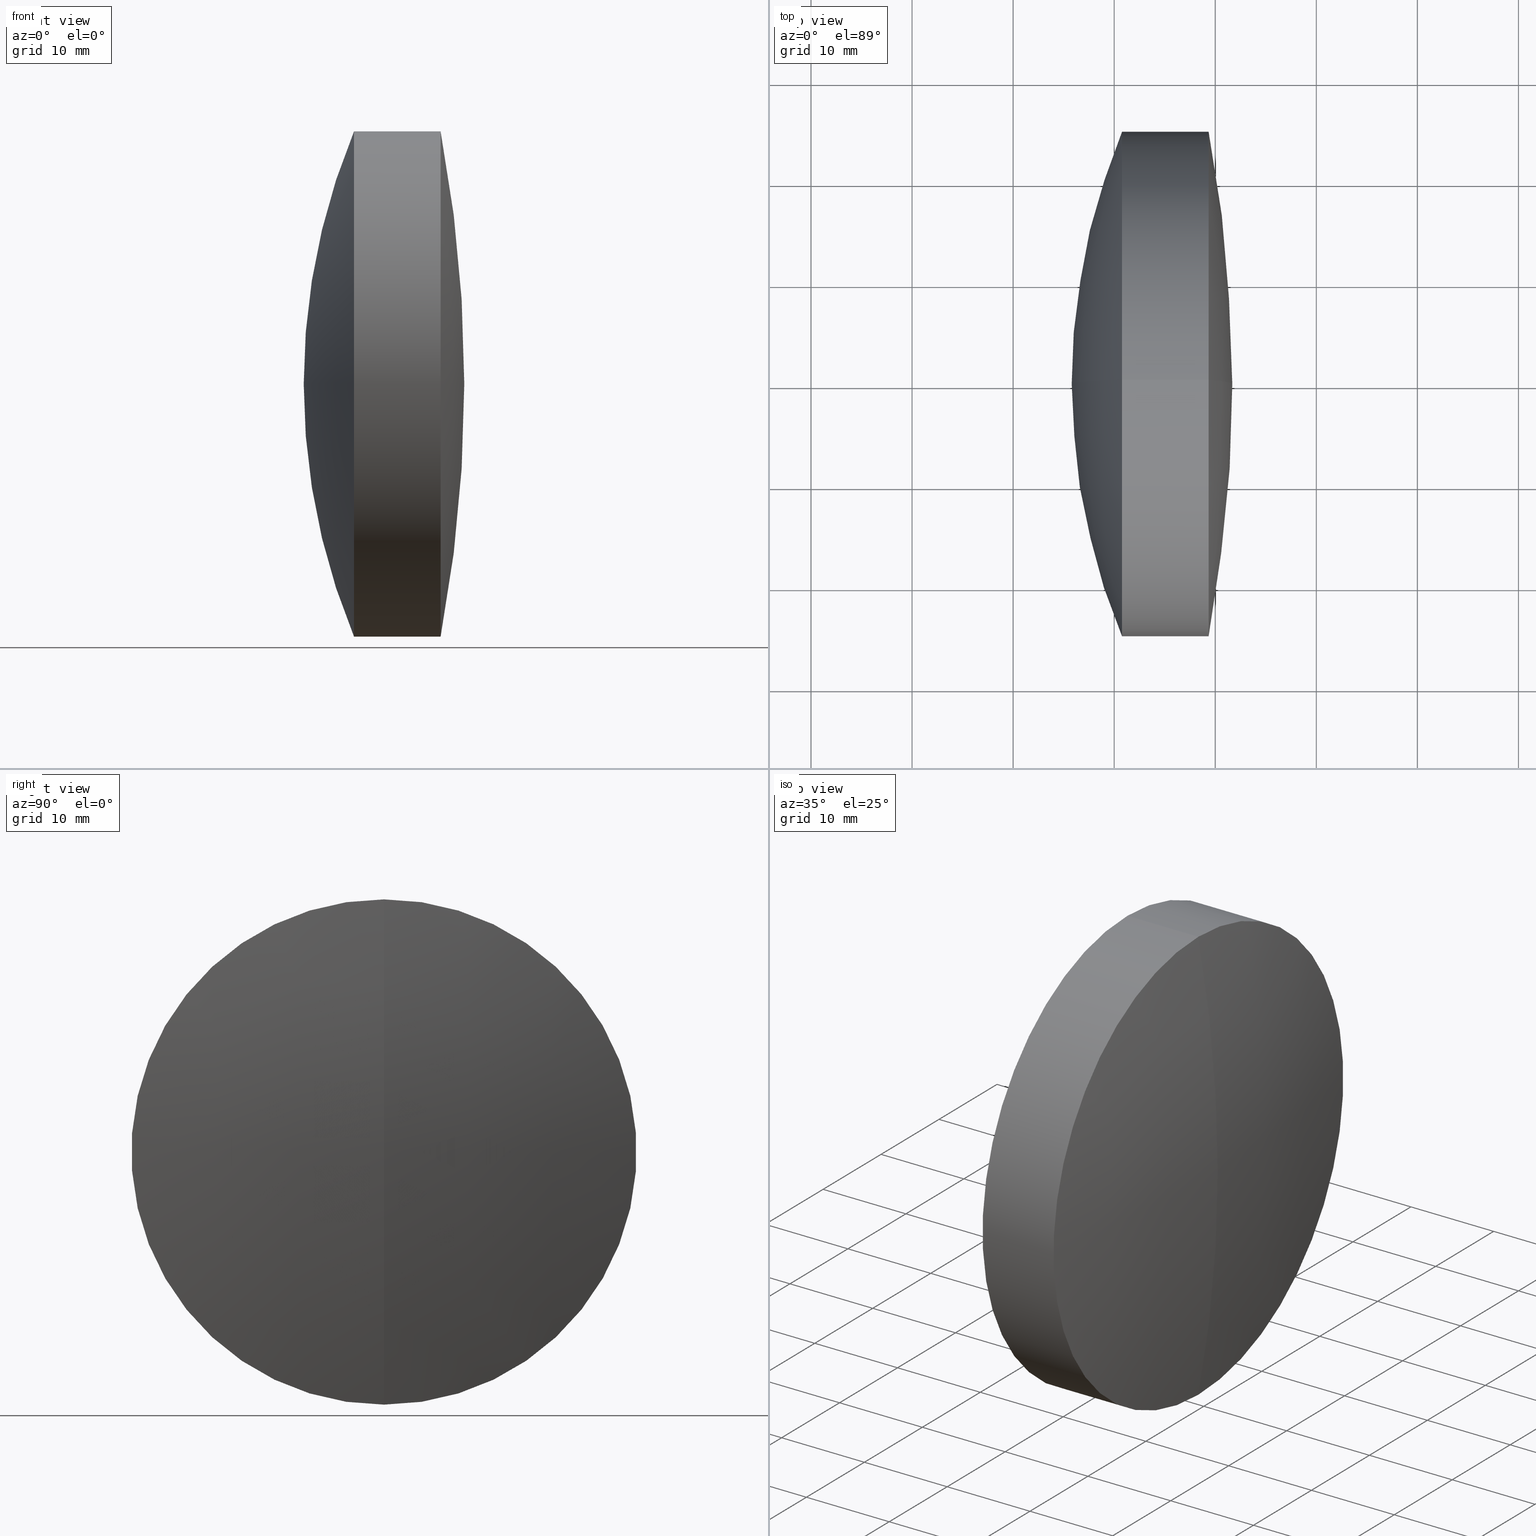
[diagram: canonical four-view strip — front | top / right | iso, engineering-drawing reading convention]
A machine part, canonical four-view strip (front | top / right | iso — engineering-drawing reading convention). The complete STEP part file that produces these views, byte-faithful:
ISO-10303-21;
HEADER;
FILE_DESCRIPTION (( 'STEP AP214' ),
    '1' );
FILE_NAME ('145079.STEP',
    '2019-05-16T02:28:18',
    ( 'user' ),
    ( '΢���й�' ),
    'SwSTEP 2.0',
    'SolidWorks 2016',
    '' );
FILE_SCHEMA (( 'AUTOMOTIVE_DESIGN' ));
ENDSEC;

DATA;
#1 = CARTESIAN_POINT ( 'NONE',  ( 181.4884551574296000, 0.0000000000000000000, -3.469446951953614200E-015 ) ) ;
#2 = CARTESIAN_POINT ( 'NONE',  ( 222.6946538294740800, 3.061616997868383000E-015, -25.00000000000000000 ) ) ;
#3 = AXIS2_PLACEMENT_3D ( 'NONE', #216, #189, #300 ) ;
#4 = PRODUCT_DEFINITION_CONTEXT ( 'detailed design', #69, 'design' ) ;
#5 = CIRCLE ( 'NONE', #287, 48.19700000000000300 ) ;
#6 =( GEOMETRIC_REPRESENTATION_CONTEXT ( 3 ) GLOBAL_UNCERTAINTY_ASSIGNED_CONTEXT ( ( #36 ) ) GLOBAL_UNIT_ASSIGNED_CONTEXT ( ( #64, #304, #170 ) ) REPRESENTATION_CONTEXT ( 'NONE', 'WORKASPACE' ) );
#7 = VECTOR ( 'NONE', #322, 1000.000000000000000 ) ;
#8 = ADVANCED_FACE ( 'NONE', ( #153 ), #224, .F. ) ;
#9 = DIRECTION ( 'NONE',  ( -0.0000000000000000000, 1.000000000000000000, 1.224646799147353200E-016 ) ) ;
#10 = SPHERICAL_SURFACE ( 'NONE', #3, 134.5920000000000100 ) ;
#11 = SURFACE_STYLE_USAGE ( .BOTH. , #185 ) ;
#12 = AXIS2_PLACEMENT_3D ( 'NONE', #345, #269, #17 ) ;
#13 = VERTEX_POINT ( 'NONE', #235 ) ;
#14 = CIRCLE ( 'NONE', #323, 24.99999999999999300 ) ;
#15 = VERTEX_POINT ( 'NONE', #234 ) ;
#16 = FACE_OUTER_BOUND ( 'NONE', #208, .T. ) ;
#17 = DIRECTION ( 'NONE',  ( 0.0000000000000000000, 0.0000000000000000000, 1.000000000000000000 ) ) ;
#18 = EDGE_CURVE ( 'NONE', #335, #130, #37, .T. ) ;
#19 = CARTESIAN_POINT ( 'NONE',  ( 181.4884551574296000, 0.0000000000000000000, -3.469446951953614200E-015 ) ) ;
#20 = ORIENTED_EDGE ( 'NONE', *, *, #142, .T. ) ;
#21 = AXIS2_PLACEMENT_3D ( 'NONE', #46, #113, #282 ) ;
#22 = DIRECTION ( 'NONE',  ( 0.0000000000000000000, 0.0000000000000000000, 1.000000000000000000 ) ) ;
#23 = EDGE_CURVE ( 'NONE', #200, #13, #199, .T. ) ;
#24 = DIRECTION ( 'NONE',  ( -1.000000000000000000, -0.0000000000000000000, -0.0000000000000000000 ) ) ;
#25 = SPHERICAL_SURFACE ( 'NONE', #149, 48.19700000000000300 ) ;
#26 = DIRECTION ( 'NONE',  ( -1.000000000000000000, -0.0000000000000000000, -0.0000000000000000000 ) ) ;
#27 = VERTEX_POINT ( 'NONE', #341 ) ;
#28 = AXIS2_PLACEMENT_3D ( 'NONE', #1, #213, #173 ) ;
#29 = CIRCLE ( 'NONE', #207, 134.5920000000000100 ) ;
#30 = CARTESIAN_POINT ( 'NONE',  ( 97.09345515742958800, 0.0000000000000000000, 0.0000000000000000000 ) ) ;
#31 = VERTEX_POINT ( 'NONE', #194 ) ;
#32 = ORIENTED_EDGE ( 'NONE', *, *, #127, .F. ) ;
#33 = ADVANCED_FACE ( 'NONE', ( #16 ), #80, .F. ) ;
#34 = ORIENTED_EDGE ( 'NONE', *, *, #177, .T. ) ;
#35 = LINE ( 'NONE', #239, #110 ) ;
#36 = UNCERTAINTY_MEASURE_WITH_UNIT (LENGTH_MEASURE( 1.000000000000000100E-005 ), #64, 'distance_accuracy_value', 'NONE');
#37 = CIRCLE ( 'NONE', #131, 25.00000000000001100 ) ;
#38 = ORIENTED_EDGE ( 'NONE', *, *, #83, .F. ) ;
#39 = CIRCLE ( 'NONE', #47, 48.19700000000000300 ) ;
#40 = DIRECTION ( 'NONE',  ( 0.0000000000000000000, 0.0000000000000000000, -1.000000000000000000 ) ) ;
#41 = COLOUR_RGB ( '',1.000000000000000000, 1.000000000000000000, 1.000000000000000000 ) ;
#42 = ORIENTED_EDGE ( 'NONE', *, *, #58, .T. ) ;
#43 = CARTESIAN_POINT ( 'NONE',  ( 181.4884551574296000, 0.0000000000000000000, -3.469446951953614200E-015 ) ) ;
#44 = AXIS2_PLACEMENT_3D ( 'NONE', #178, #86, #271 ) ;
#45 = SPHERICAL_SURFACE ( 'NONE', #28, 48.19700000000000300 ) ;
#46 = CARTESIAN_POINT ( 'NONE',  ( 281.0554551574296100, 0.0000000000000000000, -3.469446951953614200E-015 ) ) ;
#47 = AXIS2_PLACEMENT_3D ( 'NONE', #19, #340, #162 ) ;
#48 = PRODUCT_DEFINITION ( 'δ֪', '', #219, #4 ) ;
#49 = AXIS2_PLACEMENT_3D ( 'NONE', #151, #78, #22 ) ;
#50 = DIRECTION ( 'NONE',  ( 0.0000000000000000000, 1.000000000000000000, 0.0000000000000000000 ) ) ;
#51 = EDGE_CURVE ( 'NONE', #31, #335, #29, .T. ) ;
#52 = CIRCLE ( 'NONE', #333, 24.99999999999999300 ) ;
#53 = DIRECTION ( 'NONE',  ( 0.0000000000000000000, 0.0000000000000000000, 1.000000000000000000 ) ) ;
#54 = CARTESIAN_POINT ( 'NONE',  ( -0.5519199926577972300, 0.0000000000000000000, 0.0000000000000000000 ) ) ;
#55 = ADVANCED_FACE ( 'NONE', ( #176 ), #339, .T. ) ;
#56 = CIRCLE ( 'NONE', #230, 134.5920000000000100 ) ;
#57 =( NAMED_UNIT ( * ) SI_UNIT ( $, .STERADIAN. ) SOLID_ANGLE_UNIT ( ) );
#58 = EDGE_CURVE ( 'NONE', #290, #27, #330, .T. ) ;
#59 = LINE ( 'NONE', #240, #7 ) ;
#60 = VERTEX_POINT ( 'NONE', #65 ) ;
#61 = DIRECTION ( 'NONE',  ( 0.0000000000000000000, -1.224646799147353200E-016, 1.000000000000000000 ) ) ;
#62 = ORIENTED_EDGE ( 'NONE', *, *, #154, .F. ) ;
#63 = EDGE_LOOP ( 'NONE', ( #38, #217, #150 ) ) ;
#64 =( LENGTH_UNIT ( ) NAMED_UNIT ( * ) SI_UNIT ( .MILLI., .METRE. ) );
#65 = CARTESIAN_POINT ( 'NONE',  ( 220.7738858347917100, 3.061616997868383800E-015, -25.00000000000001400 ) ) ;
#66 = DIRECTION ( 'NONE',  ( -1.000000000000000000, -0.0000000000000000000, -0.0000000000000000000 ) ) ;
#67 = ORIENTED_EDGE ( 'NONE', *, *, #68, .F. ) ;
#68 = EDGE_CURVE ( 'NONE', #15, #13, #136, .T. ) ;
#69 = APPLICATION_CONTEXT ( 'automotive_design' ) ;
#70 = SURFACE_STYLE_USAGE ( .BOTH. , #184 ) ;
#71 = DIRECTION ( 'NONE',  ( 0.0000000000000000000, 0.0000000000000000000, 1.000000000000000000 ) ) ;
#72 =( GEOMETRIC_REPRESENTATION_CONTEXT ( 3 ) GLOBAL_UNCERTAINTY_ASSIGNED_CONTEXT ( ( #325 ) ) GLOBAL_UNIT_ASSIGNED_CONTEXT ( ( #124, #280, #96 ) ) REPRESENTATION_CONTEXT ( 'NONE', 'WORKASPACE' ) );
#73 = AXIS2_PLACEMENT_3D ( 'NONE', #229, #50, #317 ) ;
#74 = CARTESIAN_POINT ( 'NONE',  ( 222.6946538294740800, 0.0000000000000000000, 0.0000000000000000000 ) ) ;
#75 = AXIS2_PLACEMENT_3D ( 'NONE', #109, #147, #344 ) ;
#76 = ORIENTED_EDGE ( 'NONE', *, *, #108, .F. ) ;
#77 = DIRECTION ( 'NONE',  ( -1.000000000000000000, -0.0000000000000000000, -0.0000000000000000000 ) ) ;
#78 = DIRECTION ( 'NONE',  ( -1.000000000000000000, -0.0000000000000000000, -0.0000000000000000000 ) ) ;
#79 = CYLINDRICAL_SURFACE ( 'NONE', #87, 25.00000000000001100 ) ;
#80 = SPHERICAL_SURFACE ( 'NONE', #188, 48.19700000000000300 ) ;
#81 = AXIS2_PLACEMENT_3D ( 'NONE', #221, #278, #163 ) ;
#82 = UNCERTAINTY_MEASURE_WITH_UNIT (LENGTH_MEASURE( 1.000000000000000100E-005 ), #146, 'distance_accuracy_value', 'NONE');
#83 = EDGE_CURVE ( 'NONE', #60, #90, #301, .T. ) ;
#84 = DIRECTION ( 'NONE',  ( 0.0000000000000000000, 0.0000000000000000000, 1.000000000000000000 ) ) ;
#85 = FACE_OUTER_BOUND ( 'NONE', #117, .T. ) ;
#86 = DIRECTION ( 'NONE',  ( -1.000000000000000000, -0.0000000000000000000, -0.0000000000000000000 ) ) ;
#87 = AXIS2_PLACEMENT_3D ( 'NONE', #54, #77, #156 ) ;
#88 = CARTESIAN_POINT ( 'NONE',  ( 97.09345515742958800, 0.0000000000000000000, 0.0000000000000000000 ) ) ;
#89 = PRESENTATION_STYLE_ASSIGNMENT (( #70 ) ) ;
#90 = VERTEX_POINT ( 'NONE', #310 ) ;
#91 = FACE_OUTER_BOUND ( 'NONE', #95, .T. ) ;
#92 = ADVANCED_FACE ( 'NONE', ( #265 ), #233, .T. ) ;
#93 = ORIENTED_EDGE ( 'NONE', *, *, #293, .T. ) ;
#94 = SURFACE_STYLE_USAGE ( .BOTH. , #291 ) ;
#95 = EDGE_LOOP ( 'NONE', ( #32, #201, #346, #67 ) ) ;
#96 =( NAMED_UNIT ( * ) SI_UNIT ( $, .STERADIAN. ) SOLID_ANGLE_UNIT ( ) );
#97 = CARTESIAN_POINT ( 'NONE',  ( 281.0554551574296100, 0.0000000000000000000, -3.469446951953614200E-015 ) ) ;
#98 = AXIS2_PLACEMENT_3D ( 'NONE', #272, #120, #40 ) ;
#99 = FACE_OUTER_BOUND ( 'NONE', #316, .T. ) ;
#100 = CARTESIAN_POINT ( 'NONE',  ( 181.4884551574296000, 0.0000000000000000000, -3.469446951953614200E-015 ) ) ;
#101 = CARTESIAN_POINT ( 'NONE',  ( 229.3432433009272400, 3.061616997868384200E-015, -25.00000000000001100 ) ) ;
#102 = DIRECTION ( 'NONE',  ( 0.0000000000000000000, 0.0000000000000000000, 1.000000000000000000 ) ) ;
#103 =( LENGTH_UNIT ( ) NAMED_UNIT ( * ) SI_UNIT ( .MILLI., .METRE. ) );
#104 = CIRCLE ( 'NONE', #297, 25.00000000000001100 ) ;
#105 = DIRECTION ( 'NONE',  ( -1.000000000000000000, -0.0000000000000000000, -0.0000000000000000000 ) ) ;
#106 = DIRECTION ( 'NONE',  ( 0.0000000000000000000, 0.0000000000000000000, 1.000000000000000000 ) ) ;
#107 =( GEOMETRIC_REPRESENTATION_CONTEXT ( 3 ) GLOBAL_UNCERTAINTY_ASSIGNED_CONTEXT ( ( #82 ) ) GLOBAL_UNIT_ASSIGNED_CONTEXT ( ( #146, #332, #57 ) ) REPRESENTATION_CONTEXT ( 'NONE', 'WORKASPACE' ) );
#108 = EDGE_CURVE ( 'NONE', #13, #15, #223, .T. ) ;
#109 = CARTESIAN_POINT ( 'NONE',  ( 181.4884551574296000, 0.0000000000000000000, -3.469446951953614200E-015 ) ) ;
#110 = VECTOR ( 'NONE', #169, 1000.000000000000000 ) ;
#111 = ORIENTED_EDGE ( 'NONE', *, *, #311, .F. ) ;
#112 = CARTESIAN_POINT ( 'NONE',  ( -0.5519199926577972300, 3.061616997868384200E-015, -25.00000000000001100 ) ) ;
#113 = DIRECTION ( 'NONE',  ( 0.0000000000000000000, 1.000000000000000000, 0.0000000000000000000 ) ) ;
#114 = ORIENTED_EDGE ( 'NONE', *, *, #83, .T. ) ;
#115 = STYLED_ITEM ( 'NONE', ( #89 ), #210 ) ;
#116 = CARTESIAN_POINT ( 'NONE',  ( 181.4884551574296000, 0.0000000000000000000, -3.469446951953614200E-015 ) ) ;
#117 = EDGE_LOOP ( 'NONE', ( #133, #281, #261 ) ) ;
#118 = DIRECTION ( 'NONE',  ( 0.0000000000000000000, 0.0000000000000000000, -1.000000000000000000 ) ) ;
#119 = PRESENTATION_STYLE_ASSIGNMENT (( #11 ) ) ;
#120 = DIRECTION ( 'NONE',  ( 0.0000000000000000000, -1.000000000000000000, 0.0000000000000000000 ) ) ;
#121 = ADVANCED_FACE ( 'NONE', ( #215 ), #25, .T. ) ;
#122 = MECHANICAL_DESIGN_GEOMETRIC_PRESENTATION_REPRESENTATION (  '', ( #157 ), #307 ) ;
#123 = DIRECTION ( 'NONE',  ( -1.000000000000000000, -0.0000000000000000000, -0.0000000000000000000 ) ) ;
#124 =( LENGTH_UNIT ( ) NAMED_UNIT ( * ) SI_UNIT ( .MILLI., .METRE. ) );
#125 = SHAPE_DEFINITION_REPRESENTATION ( #328, #210 ) ;
#126 = EDGE_LOOP ( 'NONE', ( #20, #114, #285 ) ) ;
#127 = EDGE_CURVE ( 'NONE', #335, #15, #256, .T. ) ;
#128 = VERTEX_POINT ( 'NONE', #284 ) ;
#129 = CARTESIAN_POINT ( 'NONE',  ( 222.6946538294740800, 0.0000000000000000000, 0.0000000000000000000 ) ) ;
#130 = VERTEX_POINT ( 'NONE', #148 ) ;
#131 = AXIS2_PLACEMENT_3D ( 'NONE', #254, #24, #274 ) ;
#132 = AXIS2_PLACEMENT_3D ( 'NONE', #88, #309, #267 ) ;
#133 = ORIENTED_EDGE ( 'NONE', *, *, #250, .F. ) ;
#134 = DIRECTION ( 'NONE',  ( 0.0000000000000000000, 0.0000000000000000000, 1.000000000000000000 ) ) ;
#135 = CLOSED_SHELL ( 'NONE', ( #196, #55, #251, #306, #143, #121 ) ) ;
#136 = CIRCLE ( 'NONE', #49, 25.00000000000001100 ) ;
#137 = PRESENTATION_LAYER_ASSIGNMENT (  '', '', ( #165 ) ) ;
#138 = EDGE_CURVE ( 'NONE', #200, #15, #39, .T. ) ;
#139 = ORIENTED_EDGE ( 'NONE', *, *, #58, .F. ) ;
#140 = FILL_AREA_STYLE ('',( #190 ) ) ;
#141 = ORIENTED_EDGE ( 'NONE', *, *, #214, .T. ) ;
#142 = EDGE_CURVE ( 'NONE', #128, #60, #14, .T. ) ;
#143 = ADVANCED_FACE ( 'NONE', ( #343 ), #260, .T. ) ;
#144 = ORIENTED_EDGE ( 'NONE', *, *, #23, .F. ) ;
#145 = EDGE_LOOP ( 'NONE', ( #315, #42, #191 ) ) ;
#146 =( LENGTH_UNIT ( ) NAMED_UNIT ( * ) SI_UNIT ( .MILLI., .METRE. ) );
#147 = DIRECTION ( 'NONE',  ( 0.0000000000000000000, -1.000000000000000000, 0.0000000000000000000 ) ) ;
#148 = CARTESIAN_POINT ( 'NONE',  ( 229.3432433009272400, 0.0000000000000000000, 25.00000000000001100 ) ) ;
#149 = AXIS2_PLACEMENT_3D ( 'NONE', #100, #279, #232 ) ;
#150 = ORIENTED_EDGE ( 'NONE', *, *, #268, .T. ) ;
#151 = CARTESIAN_POINT ( 'NONE',  ( 222.6946538294740800, 0.0000000000000000000, 0.0000000000000000000 ) ) ;
#152 = CARTESIAN_POINT ( 'NONE',  ( 229.6854551574296000, 0.0000000000000000000, -5.182318630283648400E-016 ) ) ;
#153 = FACE_OUTER_BOUND ( 'NONE', #161, .T. ) ;
#154 = EDGE_CURVE ( 'NONE', #60, #128, #52, .T. ) ;
#155 = CIRCLE ( 'NONE', #319, 24.99999999999999600 ) ;
#156 = DIRECTION ( 'NONE',  ( 0.0000000000000000000, 0.0000000000000000000, 1.000000000000000000 ) ) ;
#157 = STYLED_ITEM ( 'NONE', ( #119 ), #227 ) ;
#158 = MECHANICAL_DESIGN_GEOMETRIC_PRESENTATION_REPRESENTATION (  '', ( #115 ), #107 ) ;
#159 = DIRECTION ( 'NONE',  ( -1.000000000000000000, -0.0000000000000000000, -0.0000000000000000000 ) ) ;
#160 = DIRECTION ( 'NONE',  ( -0.0000000000000000000, 1.000000000000000000, 1.224646799147353200E-016 ) ) ;
#161 = EDGE_LOOP ( 'NONE', ( #295, #168, #174 ) ) ;
#162 = DIRECTION ( 'NONE',  ( 0.0000000000000000000, -1.224646799147353200E-016, 1.000000000000000000 ) ) ;
#163 = DIRECTION ( 'NONE',  ( 1.000000000000000000, 0.0000000000000000000, 0.0000000000000000000 ) ) ;
#164 = COLOUR_RGB ( '',1.000000000000000000, 1.000000000000000000, 1.000000000000000000 ) ;
#165 = STYLED_ITEM ( 'NONE', ( #205 ), #206 ) ;
#166 = DIRECTION ( 'NONE',  ( -1.000000000000000000, -0.0000000000000000000, -0.0000000000000000000 ) ) ;
#167 = ADVANCED_FACE ( 'NONE', ( #91 ), #79, .T. ) ;
#168 = ORIENTED_EDGE ( 'NONE', *, *, #23, .T. ) ;
#169 = DIRECTION ( 'NONE',  ( -1.000000000000000000, -0.0000000000000000000, -0.0000000000000000000 ) ) ;
#170 =( NAMED_UNIT ( * ) SI_UNIT ( $, .STERADIAN. ) SOLID_ANGLE_UNIT ( ) );
#171 = CARTESIAN_POINT ( 'NONE',  ( 229.3432433009272400, 0.0000000000000000000, 0.0000000000000000000 ) ) ;
#172 = APPLICATION_PROTOCOL_DEFINITION ( 'draft international standard', 'automotive_design', 1998, #218 ) ;
#173 = DIRECTION ( 'NONE',  ( 0.0000000000000000000, 0.0000000000000000000, 1.000000000000000000 ) ) ;
#174 = ORIENTED_EDGE ( 'NONE', *, *, #108, .T. ) ;
#175 = SURFACE_STYLE_FILL_AREA ( #286 ) ;
#176 = FACE_OUTER_BOUND ( 'NONE', #203, .T. ) ;
#177 = EDGE_CURVE ( 'NONE', #27, #321, #294, .T. ) ;
#178 = CARTESIAN_POINT ( 'NONE',  ( -0.5519199926577972300, 0.0000000000000000000, 0.0000000000000000000 ) ) ;
#179 = DIRECTION ( 'NONE',  ( 0.0000000000000000000, -1.000000000000000000, 0.0000000000000000000 ) ) ;
#180 = PRODUCT_CONTEXT ( 'NONE', #218, 'mechanical' ) ;
#181 = CLOSED_SHELL ( 'NONE', ( #277, #225, #33, #8, #167, #92 ) ) ;
#182 = ORIENTED_EDGE ( 'NONE', *, *, #51, .F. ) ;
#183 = SURFACE_STYLE_FILL_AREA ( #209 ) ;
#184 = SURFACE_SIDE_STYLE ('',( #211 ) ) ;
#185 = SURFACE_SIDE_STYLE ('',( #175 ) ) ;
#186 = MECHANICAL_DESIGN_GEOMETRIC_PRESENTATION_REPRESENTATION (  '', ( #165 ), #6 ) ;
#187 = FILL_AREA_STYLE_COLOUR ( '', #164 ) ;
#188 = AXIS2_PLACEMENT_3D ( 'NONE', #116, #241, #192 ) ;
#189 = DIRECTION ( 'NONE',  ( 0.0000000000000000000, 1.000000000000000000, 0.0000000000000000000 ) ) ;
#190 = FILL_AREA_STYLE_COLOUR ( '', #41 ) ;
#191 = ORIENTED_EDGE ( 'NONE', *, *, #275, .F. ) ;
#192 = DIRECTION ( 'NONE',  ( 0.0000000000000000000, 0.0000000000000000000, 1.000000000000000000 ) ) ;
#193 = SPHERICAL_SURFACE ( 'NONE', #21, 65.25999999999997700 ) ;
#194 = CARTESIAN_POINT ( 'NONE',  ( 231.6854551574296000, 0.0000000000000000000, 8.241383099542028400E-015 ) ) ;
#195 = PRODUCT_RELATED_PRODUCT_CATEGORY ( 'part', '', ( #305 ) ) ;
#196 = ADVANCED_FACE ( 'NONE', ( #270 ), #45, .T. ) ;
#197 = EDGE_CURVE ( 'NONE', #290, #321, #5, .T. ) ;
#198 = FACE_OUTER_BOUND ( 'NONE', #126, .T. ) ;
#199 = CIRCLE ( 'NONE', #75, 48.19700000000000300 ) ;
#200 = VERTEX_POINT ( 'NONE', #152 ) ;
#201 = ORIENTED_EDGE ( 'NONE', *, *, #18, .T. ) ;
#202 = DIRECTION ( 'NONE',  ( 0.0000000000000000000, 1.000000000000000000, 0.0000000000000000000 ) ) ;
#203 = EDGE_LOOP ( 'NONE', ( #34, #93, #249, #111 ) ) ;
#204 = VECTOR ( 'NONE', #26, 1000.000000000000000 ) ;
#205 = PRESENTATION_STYLE_ASSIGNMENT (( #94 ) ) ;
#206 = MANIFOLD_SOLID_BREP ( '��ת3', #181 ) ;
#207 = AXIS2_PLACEMENT_3D ( 'NONE', #30, #266, #252 ) ;
#208 = EDGE_LOOP ( 'NONE', ( #144, #312, #220 ) ) ;
#209 = FILL_AREA_STYLE ('',( #244 ) ) ;
#210 = ADVANCED_BREP_SHAPE_REPRESENTATION ( '145079', ( #227, #206, #81 ), #72 ) ;
#211 = SURFACE_STYLE_FILL_AREA ( #140 ) ;
#212 = ORIENTED_EDGE ( 'NONE', *, *, #222, .F. ) ;
#213 = DIRECTION ( 'NONE',  ( 0.0000000000000000000, 1.000000000000000000, 0.0000000000000000000 ) ) ;
#214 = EDGE_CURVE ( 'NONE', #130, #335, #104, .T. ) ;
#215 = FACE_OUTER_BOUND ( 'NONE', #145, .T. ) ;
#216 = CARTESIAN_POINT ( 'NONE',  ( 97.09345515742958800, 0.0000000000000000000, 0.0000000000000000000 ) ) ;
#217 = ORIENTED_EDGE ( 'NONE', *, *, #154, .T. ) ;
#218 = APPLICATION_CONTEXT ( 'automotive_design' ) ;
#219 = PRODUCT_DEFINITION_FORMATION_WITH_SPECIFIED_SOURCE ( '�κ�', '', #305, .NOT_KNOWN. ) ;
#220 = ORIENTED_EDGE ( 'NONE', *, *, #68, .T. ) ;
#221 = CARTESIAN_POINT ( 'NONE',  ( 0.0000000000000000000, 0.0000000000000000000, 0.0000000000000000000 ) ) ;
#222 = EDGE_CURVE ( 'NONE', #130, #13, #35, .T. ) ;
#223 = CIRCLE ( 'NONE', #342, 25.00000000000001100 ) ;
#224 = SPHERICAL_SURFACE ( 'NONE', #73, 48.19700000000000300 ) ;
#225 = ADVANCED_FACE ( 'NONE', ( #99 ), #247, .T. ) ;
#226 = AXIS2_PLACEMENT_3D ( 'NONE', #97, #202, #71 ) ;
#227 = MANIFOLD_SOLID_BREP ( '��ת1', #135 ) ;
#228 = CARTESIAN_POINT ( 'NONE',  ( 124.5233095260452400, 0.0000000000000000000, 24.99999999999999300 ) ) ;
#229 = CARTESIAN_POINT ( 'NONE',  ( 181.4884551574296000, 0.0000000000000000000, -3.469446951953614200E-015 ) ) ;
#230 = AXIS2_PLACEMENT_3D ( 'NONE', #318, #179, #258 ) ;
#231 = CARTESIAN_POINT ( 'NONE',  ( 229.6854551574296000, 0.0000000000000000000, -5.182318630283648400E-016 ) ) ;
#232 = DIRECTION ( 'NONE',  ( 0.0000000000000000000, 0.0000000000000000000, 1.000000000000000000 ) ) ;
#233 = SPHERICAL_SURFACE ( 'NONE', #132, 134.5920000000000100 ) ;
#234 = CARTESIAN_POINT ( 'NONE',  ( 222.6946538294740800, 3.061616997868383800E-015, -25.00000000000001100 ) ) ;
#235 = CARTESIAN_POINT ( 'NONE',  ( 222.6946538294740800, 0.0000000000000000000, 25.00000000000000700 ) ) ;
#236 = UNCERTAINTY_MEASURE_WITH_UNIT (LENGTH_MEASURE( 1.000000000000000100E-005 ), #103, 'distance_accuracy_value', 'NONE');
#237 = AXIS2_PLACEMENT_3D ( 'NONE', #43, #337, #118 ) ;
#238 = DIRECTION ( 'NONE',  ( -1.000000000000000000, -0.0000000000000000000, -0.0000000000000000000 ) ) ;
#239 = CARTESIAN_POINT ( 'NONE',  ( -0.5519199926577972300, 0.0000000000000000000, 25.00000000000001100 ) ) ;
#240 = CARTESIAN_POINT ( 'NONE',  ( 124.5233095260452400, 3.061616997868382300E-015, -24.99999999999999300 ) ) ;
#241 = DIRECTION ( 'NONE',  ( 0.0000000000000000000, 1.000000000000000000, 0.0000000000000000000 ) ) ;
#242 = CARTESIAN_POINT ( 'NONE',  ( 124.5233095260452400, 0.0000000000000000000, 0.0000000000000000000 ) ) ;
#243 = ORIENTED_EDGE ( 'NONE', *, *, #197, .T. ) ;
#244 = FILL_AREA_STYLE_COLOUR ( '', #248 ) ;
#245 = ORIENTED_EDGE ( 'NONE', *, *, #293, .F. ) ;
#246 = CARTESIAN_POINT ( 'NONE',  ( 220.7738858347917100, 0.0000000000000000000, 0.0000000000000000000 ) ) ;
#247 = CYLINDRICAL_SURFACE ( 'NONE', #44, 25.00000000000001100 ) ;
#248 = COLOUR_RGB ( '',1.000000000000000000, 1.000000000000000000, 1.000000000000000000 ) ;
#249 = ORIENTED_EDGE ( 'NONE', *, *, #142, .F. ) ;
#250 = EDGE_CURVE ( 'NONE', #31, #130, #56, .T. ) ;
#251 = ADVANCED_FACE ( 'NONE', ( #198 ), #264, .T. ) ;
#252 = DIRECTION ( 'NONE',  ( 0.0000000000000000000, -1.224646799147353200E-016, 1.000000000000000000 ) ) ;
#253 = ORIENTED_EDGE ( 'NONE', *, *, #250, .T. ) ;
#254 = CARTESIAN_POINT ( 'NONE',  ( 229.3432433009272400, 0.0000000000000000000, 0.0000000000000000000 ) ) ;
#255 = CARTESIAN_POINT ( 'NONE',  ( 124.5233095260452400, 0.0000000000000000000, 0.0000000000000000000 ) ) ;
#256 = LINE ( 'NONE', #112, #288 ) ;
#257 = AXIS2_PLACEMENT_3D ( 'NONE', #242, #105, #106 ) ;
#258 = DIRECTION ( 'NONE',  ( 0.0000000000000000000, 0.0000000000000000000, -1.000000000000000000 ) ) ;
#259 = CARTESIAN_POINT ( 'NONE',  ( 181.4884551574296000, 0.0000000000000000000, -3.469446951953614200E-015 ) ) ;
#260 = CYLINDRICAL_SURFACE ( 'NONE', #257, 24.99999999999999300 ) ;
#261 = ORIENTED_EDGE ( 'NONE', *, *, #214, .F. ) ;
#262 = ORIENTED_EDGE ( 'NONE', *, *, #275, .T. ) ;
#263 = ORIENTED_EDGE ( 'NONE', *, *, #18, .F. ) ;
#264 = SPHERICAL_SURFACE ( 'NONE', #226, 65.25999999999997700 ) ;
#265 = FACE_OUTER_BOUND ( 'NONE', #327, .T. ) ;
#266 = DIRECTION ( 'NONE',  ( -0.0000000000000000000, 1.000000000000000000, 1.224646799147353200E-016 ) ) ;
#267 = DIRECTION ( 'NONE',  ( 0.0000000000000000000, 0.0000000000000000000, 1.000000000000000000 ) ) ;
#268 = EDGE_CURVE ( 'NONE', #128, #90, #338, .T. ) ;
#269 = DIRECTION ( 'NONE',  ( -1.000000000000000000, -0.0000000000000000000, -0.0000000000000000000 ) ) ;
#270 = FACE_OUTER_BOUND ( 'NONE', #302, .T. ) ;
#271 = DIRECTION ( 'NONE',  ( 0.0000000000000000000, 0.0000000000000000000, 1.000000000000000000 ) ) ;
#272 = CARTESIAN_POINT ( 'NONE',  ( 281.0554551574296100, 0.0000000000000000000, -3.469446951953614200E-015 ) ) ;
#273 = APPLICATION_PROTOCOL_DEFINITION ( 'draft international standard', 'automotive_design', 1998, #69 ) ;
#274 = DIRECTION ( 'NONE',  ( 0.0000000000000000000, 0.0000000000000000000, 1.000000000000000000 ) ) ;
#275 = EDGE_CURVE ( 'NONE', #321, #27, #155, .T. ) ;
#276 = ORIENTED_EDGE ( 'NONE', *, *, #127, .T. ) ;
#277 = ADVANCED_FACE ( 'NONE', ( #85 ), #10, .T. ) ;
#278 = DIRECTION ( 'NONE',  ( 0.0000000000000000000, 0.0000000000000000000, 1.000000000000000000 ) ) ;
#279 = DIRECTION ( 'NONE',  ( 0.0000000000000000000, 1.000000000000000000, 0.0000000000000000000 ) ) ;
#280 =( NAMED_UNIT ( * ) PLANE_ANGLE_UNIT ( ) SI_UNIT ( $, .RADIAN. ) );
#281 = ORIENTED_EDGE ( 'NONE', *, *, #51, .T. ) ;
#282 = DIRECTION ( 'NONE',  ( 0.0000000000000000000, 0.0000000000000000000, 1.000000000000000000 ) ) ;
#283 =( NAMED_UNIT ( * ) PLANE_ANGLE_UNIT ( ) SI_UNIT ( $, .RADIAN. ) );
#284 = CARTESIAN_POINT ( 'NONE',  ( 220.7738858347917100, 0.0000000000000000000, 25.00000000000000700 ) ) ;
#285 = ORIENTED_EDGE ( 'NONE', *, *, #268, .F. ) ;
#286 = FILL_AREA_STYLE ('',( #187 ) ) ;
#287 = AXIS2_PLACEMENT_3D ( 'NONE', #259, #160, #61 ) ;
#288 = VECTOR ( 'NONE', #166, 1000.000000000000000 ) ;
#289 = ORIENTED_EDGE ( 'NONE', *, *, #311, .T. ) ;
#290 = VERTEX_POINT ( 'NONE', #231 ) ;
#291 = SURFACE_SIDE_STYLE ('',( #183 ) ) ;
#292 = PRESENTATION_LAYER_ASSIGNMENT (  '', '', ( #157 ) ) ;
#293 = EDGE_CURVE ( 'NONE', #321, #60, #59, .T. ) ;
#294 = CIRCLE ( 'NONE', #12, 24.99999999999999600 ) ;
#295 = ORIENTED_EDGE ( 'NONE', *, *, #138, .F. ) ;
#296 = EDGE_LOOP ( 'NONE', ( #245, #262, #289, #62 ) ) ;
#297 = AXIS2_PLACEMENT_3D ( 'NONE', #171, #66, #308 ) ;
#298 = DIRECTION ( 'NONE',  ( -1.000000000000000000, -0.0000000000000000000, -0.0000000000000000000 ) ) ;
#299 = AXIS2_PLACEMENT_3D ( 'NONE', #329, #9, #314 ) ;
#300 = DIRECTION ( 'NONE',  ( 0.0000000000000000000, 0.0000000000000000000, 1.000000000000000000 ) ) ;
#301 = CIRCLE ( 'NONE', #299, 65.25999999999997700 ) ;
#302 = EDGE_LOOP ( 'NONE', ( #139, #243, #334 ) ) ;
#303 =( NAMED_UNIT ( * ) SI_UNIT ( $, .STERADIAN. ) SOLID_ANGLE_UNIT ( ) );
#304 =( NAMED_UNIT ( * ) PLANE_ANGLE_UNIT ( ) SI_UNIT ( $, .RADIAN. ) );
#305 = PRODUCT ( '145079', '145079', '', ( #180 ) ) ;
#306 = ADVANCED_FACE ( 'NONE', ( #336 ), #193, .T. ) ;
#307 =( GEOMETRIC_REPRESENTATION_CONTEXT ( 3 ) GLOBAL_UNCERTAINTY_ASSIGNED_CONTEXT ( ( #236 ) ) GLOBAL_UNIT_ASSIGNED_CONTEXT ( ( #103, #283, #303 ) ) REPRESENTATION_CONTEXT ( 'NONE', 'WORKASPACE' ) );
#308 = DIRECTION ( 'NONE',  ( 0.0000000000000000000, 0.0000000000000000000, 1.000000000000000000 ) ) ;
#309 = DIRECTION ( 'NONE',  ( 0.0000000000000000000, 1.000000000000000000, 0.0000000000000000000 ) ) ;
#310 = CARTESIAN_POINT ( 'NONE',  ( 215.7954551574295900, 0.0000000000000000000, 5.265755536641978500E-016 ) ) ;
#311 = EDGE_CURVE ( 'NONE', #27, #128, #324, .T. ) ;
#312 = ORIENTED_EDGE ( 'NONE', *, *, #138, .T. ) ;
#313 = PRESENTATION_LAYER_ASSIGNMENT (  '', '', ( #115 ) ) ;
#314 = DIRECTION ( 'NONE',  ( 0.0000000000000000000, -1.224646799147353200E-016, 1.000000000000000000 ) ) ;
#315 = ORIENTED_EDGE ( 'NONE', *, *, #197, .F. ) ;
#316 = EDGE_LOOP ( 'NONE', ( #141, #276, #76, #212 ) ) ;
#317 = DIRECTION ( 'NONE',  ( 0.0000000000000000000, 0.0000000000000000000, 1.000000000000000000 ) ) ;
#318 = CARTESIAN_POINT ( 'NONE',  ( 97.09345515742958800, 0.0000000000000000000, 0.0000000000000000000 ) ) ;
#319 = AXIS2_PLACEMENT_3D ( 'NONE', #129, #159, #53 ) ;
#320 = DIRECTION ( 'NONE',  ( 0.0000000000000000000, 0.0000000000000000000, 1.000000000000000000 ) ) ;
#321 = VERTEX_POINT ( 'NONE', #2 ) ;
#322 = DIRECTION ( 'NONE',  ( -1.000000000000000000, -0.0000000000000000000, -0.0000000000000000000 ) ) ;
#323 = AXIS2_PLACEMENT_3D ( 'NONE', #246, #331, #134 ) ;
#324 = LINE ( 'NONE', #228, #204 ) ;
#325 = UNCERTAINTY_MEASURE_WITH_UNIT (LENGTH_MEASURE( 1.000000000000000100E-005 ), #124, 'distance_accuracy_value', 'NONE');
#326 = AXIS2_PLACEMENT_3D ( 'NONE', #255, #298, #102 ) ;
#327 = EDGE_LOOP ( 'NONE', ( #182, #253, #263 ) ) ;
#328 = PRODUCT_DEFINITION_SHAPE ( 'NONE', 'NONE',  #48 ) ;
#329 = CARTESIAN_POINT ( 'NONE',  ( 281.0554551574296100, 0.0000000000000000000, -3.469446951953614200E-015 ) ) ;
#330 = CIRCLE ( 'NONE', #237, 48.19700000000000300 ) ;
#331 = DIRECTION ( 'NONE',  ( -1.000000000000000000, -0.0000000000000000000, -0.0000000000000000000 ) ) ;
#332 =( NAMED_UNIT ( * ) PLANE_ANGLE_UNIT ( ) SI_UNIT ( $, .RADIAN. ) );
#333 = AXIS2_PLACEMENT_3D ( 'NONE', #347, #238, #320 ) ;
#334 = ORIENTED_EDGE ( 'NONE', *, *, #177, .F. ) ;
#335 = VERTEX_POINT ( 'NONE', #101 ) ;
#336 = FACE_OUTER_BOUND ( 'NONE', #63, .T. ) ;
#337 = DIRECTION ( 'NONE',  ( 0.0000000000000000000, -1.000000000000000000, 0.0000000000000000000 ) ) ;
#338 = CIRCLE ( 'NONE', #98, 65.25999999999997700 ) ;
#339 = CYLINDRICAL_SURFACE ( 'NONE', #326, 24.99999999999999300 ) ;
#340 = DIRECTION ( 'NONE',  ( -0.0000000000000000000, 1.000000000000000000, 1.224646799147353200E-016 ) ) ;
#341 = CARTESIAN_POINT ( 'NONE',  ( 222.6946538294740800, 0.0000000000000000000, 24.99999999999999600 ) ) ;
#342 = AXIS2_PLACEMENT_3D ( 'NONE', #74, #123, #84 ) ;
#343 = FACE_OUTER_BOUND ( 'NONE', #296, .T. ) ;
#344 = DIRECTION ( 'NONE',  ( 0.0000000000000000000, 0.0000000000000000000, -1.000000000000000000 ) ) ;
#345 = CARTESIAN_POINT ( 'NONE',  ( 222.6946538294740800, 0.0000000000000000000, 0.0000000000000000000 ) ) ;
#346 = ORIENTED_EDGE ( 'NONE', *, *, #222, .T. ) ;
#347 = CARTESIAN_POINT ( 'NONE',  ( 220.7738858347917100, 0.0000000000000000000, 0.0000000000000000000 ) ) ;
ENDSEC;
END-ISO-10303-21;
